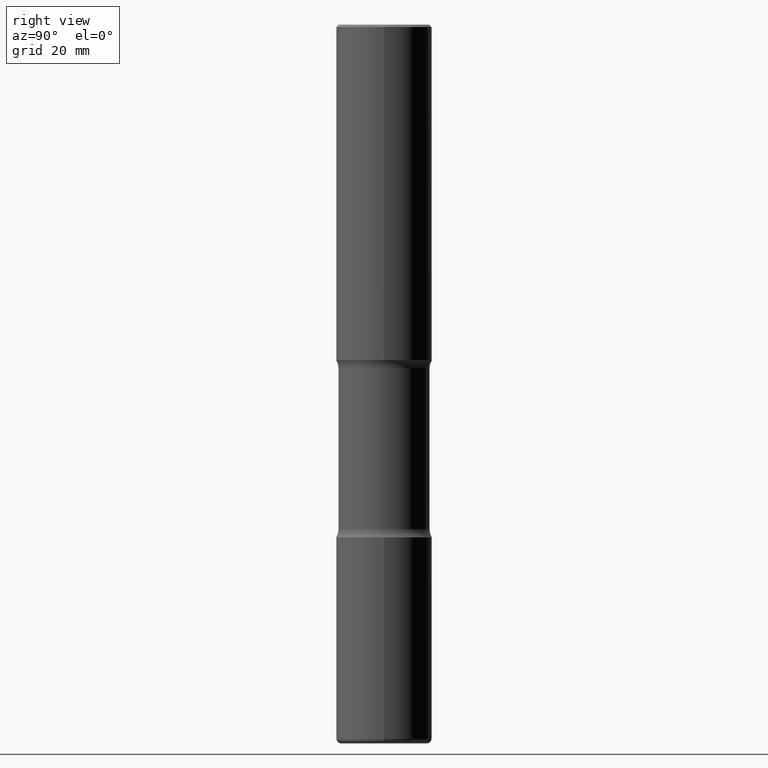
[diagram: clean part render]
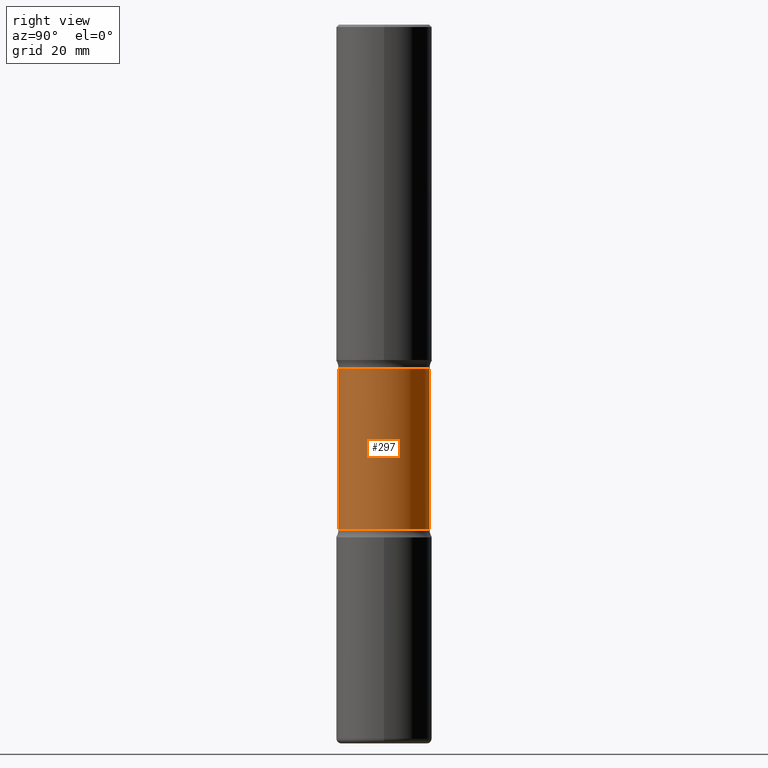
[diagram: same view with one face highlighted and labeled with its STEP entity id]
A machine part, right view. The second image highlights one B-rep face of the part: STEP entity #297.
In plain terms, the highlighted cylindrical surface (partial cylindrical patch) has radius 9.4996 mm, axis along (0, -0, -1).
Its self-contained STEP definition (entity closure, byte-faithful):
#3 = VERTEX_POINT ( 'NONE', #536 ) ;
#5 = VECTOR ( 'NONE', #250, 39.37007874015748143 ) ;
#25 = CYLINDRICAL_SURFACE ( 'NONE', #246, 0.3740000000000001656 ) ;
#36 = CIRCLE ( 'NONE', #526, 0.3740000000000001656 ) ;
#43 = EDGE_CURVE ( 'NONE', #3, #53, #460, .T. ) ;
#53 = VERTEX_POINT ( 'NONE', #542 ) ;
#56 = EDGE_CURVE ( 'NONE', #329, #99, #325, .T. ) ;
#57 = DIRECTION ( 'NONE',  ( 2.499563752616943710E-29, -3.414014296659653741E-15, -1.000000000000000000 ) ) ;
#64 = ORIENTED_EDGE ( 'NONE', *, *, #468, .F. ) ;
#70 = DIRECTION ( 'NONE',  ( 6.982962677686266711E-15, 1.000000000000000000, -2.921762560068729411E-15 ) ) ;
#71 = CARTESIAN_POINT ( 'NONE',  ( -2.565826251166408560E-15, -0.3740000000000206493, -5.905499999999997307 ) ) ;
#86 = CARTESIAN_POINT ( 'NONE',  ( 2.611628041454766160E-15, 0.3739999999999856772, -4.145243411606584161 ) ) ;
#99 = VERTEX_POINT ( 'NONE', #86 ) ;
#147 = ORIENTED_EDGE ( 'NONE', *, *, #552, .T. ) ;
#148 = FACE_OUTER_BOUND ( 'NONE', #446, .T. ) ;
#162 = DIRECTION ( 'NONE',  ( 6.982962677686266711E-15, 1.000000000000000000, -2.921762560068729411E-15 ) ) ;
#180 = ORIENTED_EDGE ( 'NONE', *, *, #43, .T. ) ;
#191 = DIRECTION ( 'NONE',  ( 2.499563752616943710E-29, -3.414014296659653741E-15, -1.000000000000000000 ) ) ;
#201 = AXIS2_PLACEMENT_3D ( 'NONE', #212, #57, #162 ) ;
#212 = CARTESIAN_POINT ( 'NONE',  ( 6.829029461346524548E-29, -9.964976017815853586E-15, -2.823256588393414646 ) ) ;
#228 = DIRECTION ( 'NONE',  ( 6.982962677686266711E-15, 1.000000000000000000, -2.921762560068729411E-15 ) ) ;
#246 = AXIS2_PLACEMENT_3D ( 'NONE', #455, #281, #70 ) ;
#250 = DIRECTION ( 'NONE',  ( 2.499563752616943710E-29, -3.414014296659653741E-15, -1.000000000000000000 ) ) ;
#280 = ORIENTED_EDGE ( 'NONE', *, *, #56, .F. ) ;
#281 = DIRECTION ( 'NONE',  ( 2.499563752616943710E-29, -3.414014296659653741E-15, -1.000000000000000000 ) ) ;
#289 = CARTESIAN_POINT ( 'NONE',  ( 1.013341980608738414E-28, -1.447825793226129018E-14, -4.145243411606583273 ) ) ;
#294 = CIRCLE ( 'NONE', #201, 0.3740000000000001656 ) ;
#296 = CARTESIAN_POINT ( 'NONE',  ( 2.611628041454733028E-15, 0.3739999999999901736, -2.823256588393415534 ) ) ;
#297 = ADVANCED_FACE ( 'NONE', ( #148 ), #25, .T. ) ;
#325 = LINE ( 'NONE', #498, #5 ) ;
#329 = VERTEX_POINT ( 'NONE', #296 ) ;
#446 = EDGE_LOOP ( 'NONE', ( #147, #180, #64, #280 ) ) ;
#455 = CARTESIAN_POINT ( 'NONE',  ( 1.453329336974072664E-28, -2.048779909082575425E-14, -5.905499999999998195 ) ) ;
#460 = LINE ( 'NONE', #71, #548 ) ;
#461 = DIRECTION ( 'NONE',  ( 2.499563752616943710E-29, -3.414014296659653741E-15, -1.000000000000000000 ) ) ;
#468 = EDGE_CURVE ( 'NONE', #99, #53, #36, .T. ) ;
#498 = CARTESIAN_POINT ( 'NONE',  ( 2.611628041454809941E-15, 0.3739999999999796820, -5.905499999999999972 ) ) ;
#526 = AXIS2_PLACEMENT_3D ( 'NONE', #289, #461, #228 ) ;
#536 = CARTESIAN_POINT ( 'NONE',  ( -2.633402156444536217E-15, -0.3740000000000101577, -2.823256588393413313 ) ) ;
#542 = CARTESIAN_POINT ( 'NONE',  ( -2.633402156444500718E-15, -0.3740000000000146541, -4.145243411606582384 ) ) ;
#548 = VECTOR ( 'NONE', #191, 39.37007874015748143 ) ;
#552 = EDGE_CURVE ( 'NONE', #329, #3, #294, .T. ) ;